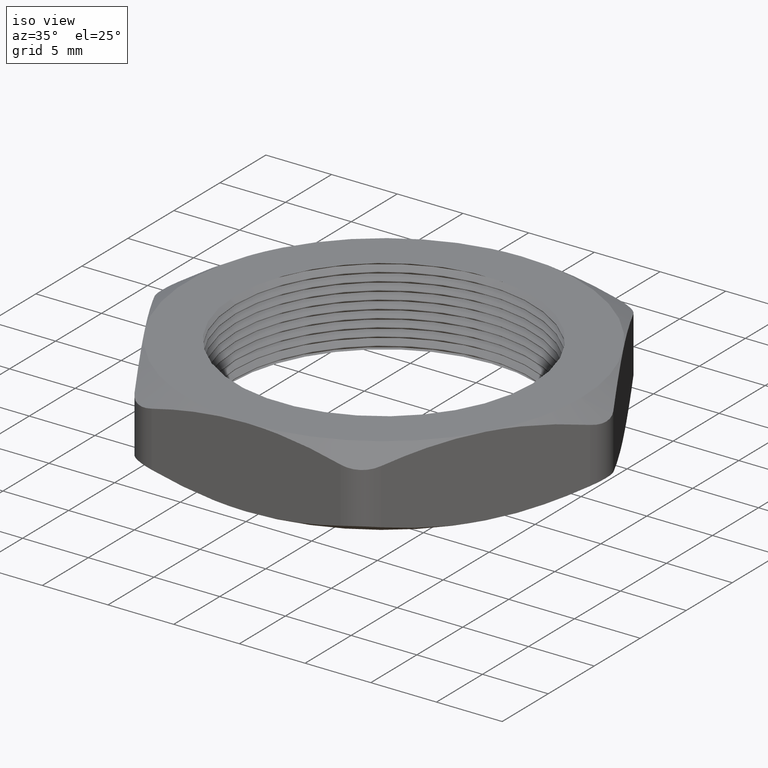
[diagram: clean part render]
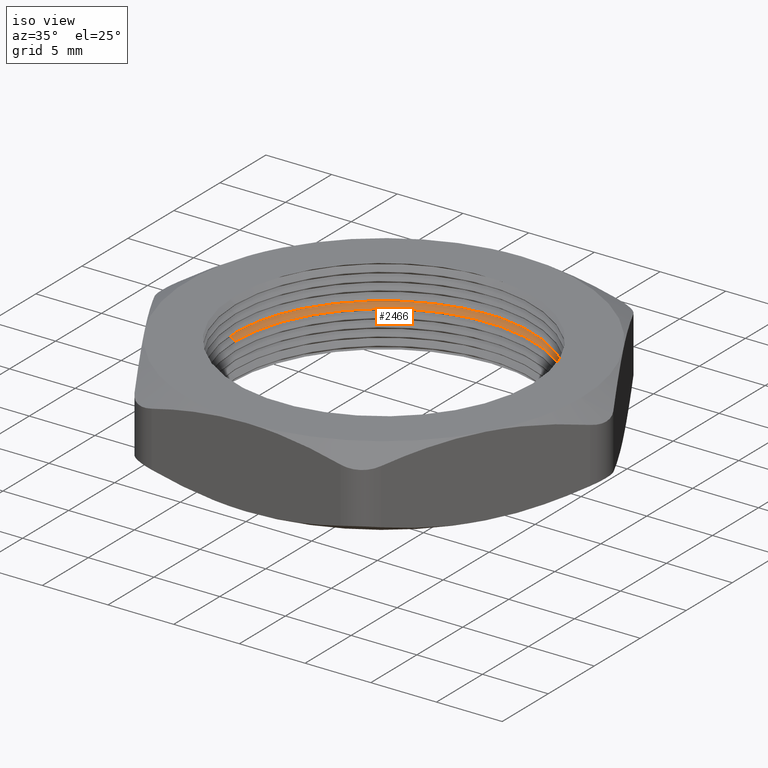
[diagram: same view with one face highlighted and labeled with its STEP entity id]
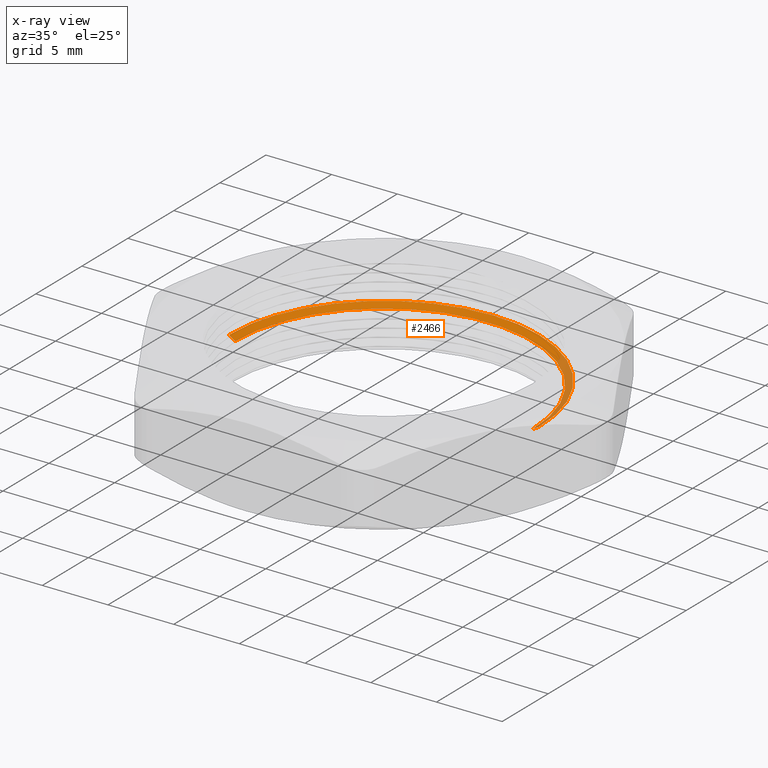
[diagram: x-ray of the same camera — body ghosted, the highlighted face saturated]
A machine part, iso view. The second image highlights one B-rep face of the part: STEP entity #2466.
The next image is the same camera in x-ray: the body ghosted, the highlighted face saturated — about 15% of this face is hidden behind the body in this view.
In plain terms, the highlighted conical surface has half-angle 60 deg.
Its self-contained STEP definition (entity closure, byte-faithful):
#363 = CARTESIAN_POINT ( 'NONE',  ( -0.4450000000000000100, 0.0000000000000000000, 0.1169059892324151600 ) ) ;
#380 = CARTESIAN_POINT ( 'NONE',  ( -0.4650000000000000200, 0.0000000000000000000, 0.1284529946162077900 ) ) ;
#443 = CARTESIAN_POINT ( 'NONE',  ( -0.4450000000000000100, 5.449678256205722000E-017, 0.1169059892324151600 ) ) ;
#444 = LINE ( 'NONE', #443, #489 ) ;
#488 = DIRECTION ( 'NONE',  ( -0.8660254037844366000, 1.060575238724904300E-016, 0.5000000000000035500 ) ) ;
#489 = VECTOR ( 'NONE', #488, 39.37007874015748100 ) ;
#539 = CARTESIAN_POINT ( 'NONE',  ( 0.4450000000000000100, 5.449678256205721400E-017, 0.1169059892324151600 ) ) ;
#572 = DIRECTION ( 'NONE',  ( 1.000000000000000000, 0.0000000000000000000, 0.0000000000000000000 ) ) ;
#573 = DIRECTION ( 'NONE',  ( 0.0000000000000000000, 0.0000000000000000000, 1.000000000000000000 ) ) ;
#617 = CARTESIAN_POINT ( 'NONE',  ( 0.0000000000000000000, 0.0000000000000000000, 0.1169059892324151600 ) ) ;
#657 = AXIS2_PLACEMENT_3D ( 'NONE', #617, #573, #572 ) ;
#658 = CIRCLE ( 'NONE', #657, 0.4450000000000000100 ) ;
#1057 = DIRECTION ( 'NONE',  ( 1.000000000000000000, 0.0000000000000000000, 0.0000000000000000000 ) ) ;
#1058 = DIRECTION ( 'NONE',  ( 0.0000000000000000000, 0.0000000000000000000, 1.000000000000000000 ) ) ;
#1059 = AXIS2_PLACEMENT_3D ( 'NONE', #1065, #1058, #1057 ) ;
#1060 = CIRCLE ( 'NONE', #1059, 0.4650000000000000200 ) ;
#1065 = CARTESIAN_POINT ( 'NONE',  ( 0.0000000000000000000, 0.0000000000000000000, 0.1284529946162077900 ) ) ;
#1235 = FACE_OUTER_BOUND ( 'NONE', #2397, .T. ) ;
#1289 = DIRECTION ( 'NONE',  ( 1.000000000000000000, 0.0000000000000000000, 0.0000000000000000000 ) ) ;
#1290 = DIRECTION ( 'NONE',  ( 0.0000000000000000000, 0.0000000000000000000, 1.000000000000000000 ) ) ;
#1291 = CARTESIAN_POINT ( 'NONE',  ( 0.0000000000000000000, 0.0000000000000000000, 0.1169059892324151600 ) ) ;
#1292 = AXIS2_PLACEMENT_3D ( 'NONE', #1291, #1290, #1289 ) ;
#1293 = CONICAL_SURFACE ( 'NONE', #1292, 0.4450000000000000100, 1.047197551196593600 ) ;
#1726 = DIRECTION ( 'NONE',  ( 0.8660254037844366000, 0.0000000000000000000, 0.5000000000000035500 ) ) ;
#1727 = VECTOR ( 'NONE', #1726, 39.37007874015748100 ) ;
#1728 = CARTESIAN_POINT ( 'NONE',  ( 0.4450000000000000100, 0.0000000000000000000, 0.1169059892324151600 ) ) ;
#1729 = LINE ( 'NONE', #1728, #1727 ) ;
#1740 = CARTESIAN_POINT ( 'NONE',  ( 0.4650000000000000200, 5.694607616035193400E-017, 0.1284529946162077900 ) ) ;
#1830 = VERTEX_POINT ( 'NONE', #1740 ) ;
#1832 = EDGE_CURVE ( 'NONE', #2000, #1830, #1729, .T. ) ;
#1996 = EDGE_CURVE ( 'NONE', #2037, #2028, #444, .T. ) ;
#2000 = VERTEX_POINT ( 'NONE', #539 ) ;
#2028 = VERTEX_POINT ( 'NONE', #380 ) ;
#2037 = VERTEX_POINT ( 'NONE', #363 ) ;
#2131 = EDGE_CURVE ( 'NONE', #2000, #2037, #658, .T. ) ;
#2391 = ORIENTED_EDGE ( 'NONE', *, *, #2396, .T. ) ;
#2396 = EDGE_CURVE ( 'NONE', #1830, #2028, #1060, .T. ) ;
#2397 = EDGE_LOOP ( 'NONE', ( #2465, #2414, #2415, #2391 ) ) ;
#2414 = ORIENTED_EDGE ( 'NONE', *, *, #2131, .F. ) ;
#2415 = ORIENTED_EDGE ( 'NONE', *, *, #1832, .T. ) ;
#2465 = ORIENTED_EDGE ( 'NONE', *, *, #1996, .F. ) ;
#2466 = ADVANCED_FACE ( 'NONE', ( #1235 ), #1293, .F. ) ;